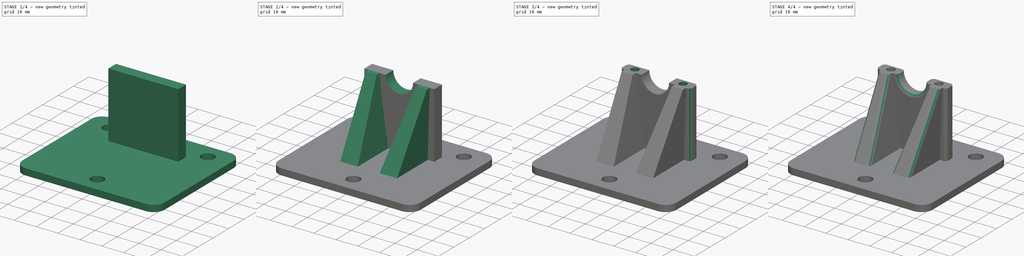
[diagram: build sequence overview — one tinted view per stage of 4, left to right]
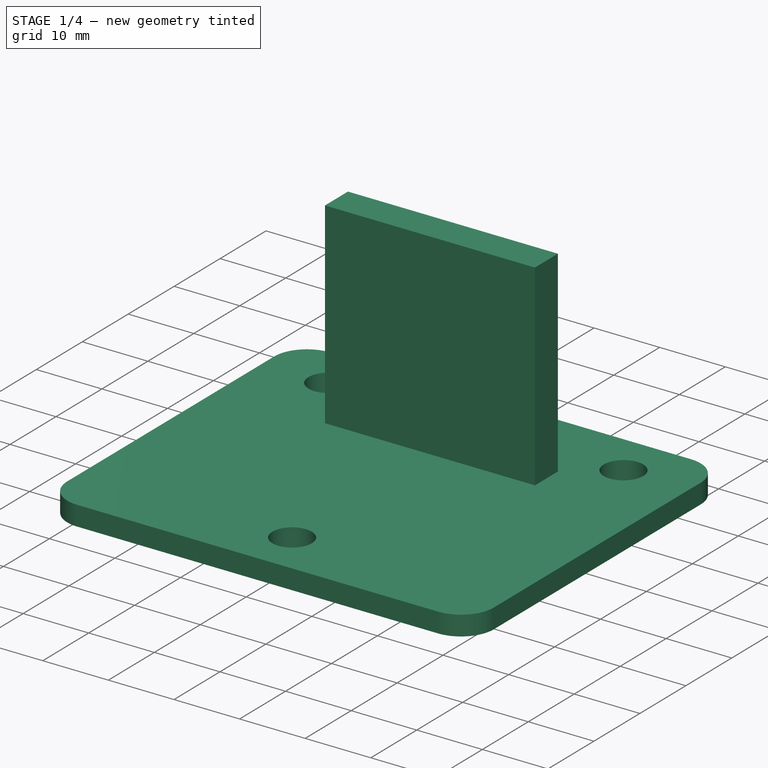
[diagram: stage 1 of 4 — iso view after this stage's code; geometry added in this stage tinted green]
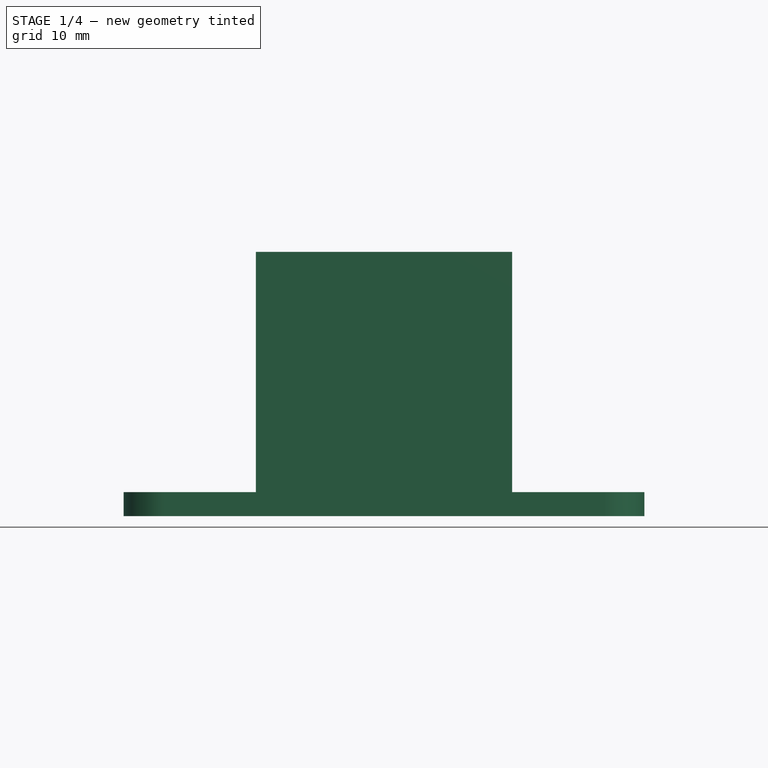
[diagram: stage 1 of 4 — front view after this stage's code; geometry added in this stage tinted green]
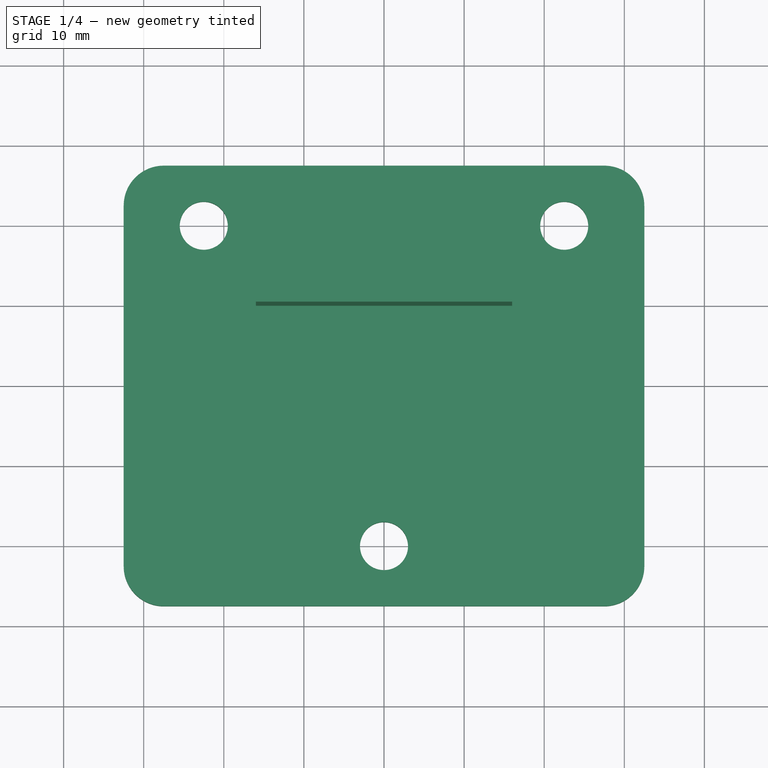
[diagram: stage 1 of 4 — top view after this stage's code; geometry added in this stage tinted green]
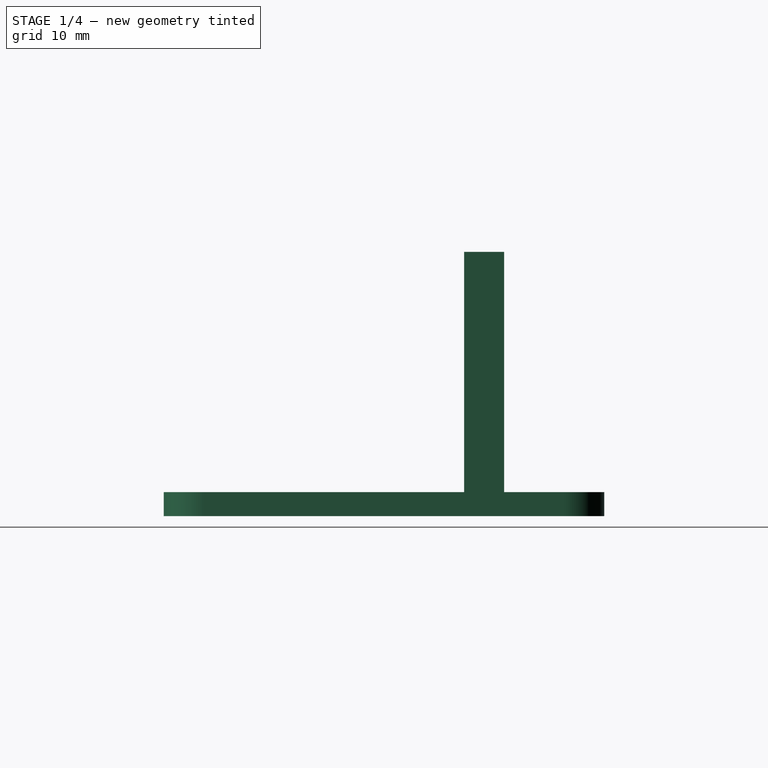
[diagram: stage 1 of 4 — right view after this stage's code; geometry added in this stage tinted green]
FCSTD DOCUMENT  (FreeCAD 0.18.4R)
Label: carro-impressov1
License: All rights reserved
LicenseURL: http://en.wikipedia.org/wiki/All_rights_reserved
objects: Sketcher::SketchObject×9, PartDesign::Pocket×3, PartDesign::Fillet×3, PartDesign::Pad×2, PartDesign::AdditiveLoft×2, PartDesign::Body×1
note: 27 computed .brp shape members not serialized (recipe doc carries the construction recipe); baked Part::Feature solids carry a one-line shape summary decoded from their .brp

FEATURE [Sketcher::SketchObject] Sketch
  MapMode = 5
  Support = -> [XY_Plane]
  sketch-geometry (12):
    g0: LineSegment StartX=-27.5 StartY=-27.5 StartZ=0 EndX=27.5 EndY=-27.5 EndZ=0
    g1: LineSegment StartX=32.5 StartY=-22.5 StartZ=0 EndX=32.5 EndY=22.5 EndZ=0
    g2: LineSegment StartX=27.5 StartY=27.5 StartZ=0 EndX=-27.5 EndY=27.5 EndZ=0
    g3: LineSegment StartX=-32.5 StartY=22.5 StartZ=0 EndX=-32.5 EndY=-22.5 EndZ=0
    g4: ArcOfCircle CenterX=27.5 CenterY=22.5 CenterZ=0 NormalX=0 NormalY=0 NormalZ=1 AngleXU=0 Radius=5 StartAngle=0 EndAngle=1.5708
    g5: ArcOfCircle CenterX=-27.5 CenterY=22.5 CenterZ=0 NormalX=0 NormalY=0 NormalZ=1 AngleXU=0 Radius=5 StartAngle=1.5708 EndAngle=3.14159
    g6: ArcOfCircle CenterX=-27.5 CenterY=-22.5 CenterZ=0 NormalX=0 NormalY=0 NormalZ=1 AngleXU=0 Radius=5 StartAngle=3.14159 EndAngle=4.71239
    g7: ArcOfCircle CenterX=27.5 CenterY=-22.5 CenterZ=0 NormalX=0 NormalY=0 NormalZ=1 AngleXU=0 Radius=5 StartAngle=4.71239 EndAngle=6.28319
    g8: Circle CenterX=-22.5 CenterY=20 CenterZ=0 NormalX=0 NormalY=0 NormalZ=1 AngleXU=0 Radius=3
    g9: Circle CenterX=22.5 CenterY=20 CenterZ=0 NormalX=0 NormalY=0 NormalZ=1 AngleXU=0 Radius=3
    g10: Circle CenterX=0 CenterY=-20 CenterZ=0 NormalX=0 NormalY=0 NormalZ=1 AngleXU=0 Radius=3
    g11: LineSegment [constr] StartX=-32.5 StartY=20 StartZ=0 EndX=32.5 EndY=20 EndZ=0
  constraints (32):
    c: Horizontal(g0)
    c: Horizontal(g2)
    c: Vertical(g1)
    c: Vertical(g3)
    c: Tangent(g2,g4) = -1.5708
    c: Tangent(g1,g4) = -1.5708
    c: Tangent(g2,g5) = -1.5708
    c: Tangent(g3,g5) = -1.5708
    c: Tangent(g3,g6) = -1.5708
    c: Tangent(g0,g6) = -1.5708
    c: Tangent(g1,g7) = -1.5708
    c: Tangent(g0,g7) = -1.5708
    c: Equal(g5,g6)
    c: Equal(g6,g7)
    c: Equal(g7,g4)
    c: Symmetric(g7,g5,g-1)
    c: DistanceX(g3,g1) = 65
    c: DistanceY(g0,g2) = 55
    c: Diameter(g5) = 10
    c: PointOnObject(g10,g-2)
    c: Diameter(g10) = 6
    c: Diameter(g8) = 6
    c: Diameter(g9) = 6
    c: DistanceY(g10,g-1) = 20
    c: DistanceX(g8,g9) = 45
    c: DistanceX(g8,g-1) = 22.5
    c: Horizontal(g11)
    c: PointOnObject(g11,g3)
    c: PointOnObject(g11,g1)
    c: PointOnObject(g9,g11)
    c: PointOnObject(g8,g11)
    c: DistanceY(g10,g8) = 40
FEATURE [PartDesign::Pad] Pad
  Length = 3
  Length2 = 100
  Profile = -> Sketch
  Type = 0
FEATURE [Sketcher::SketchObject] Sketch001
  ExternalGeometry = -> [Pad]
  MapMode = 5
  Placement = pos=(0,0,3) rot=(0,0,1;0rad)
  Support = -> [Pad]
  sketch-geometry (4):
    g0: LineSegment StartX=-16 StartY=15 StartZ=0 EndX=16 EndY=15 EndZ=0
    g1: LineSegment StartX=16 StartY=15 StartZ=0 EndX=16 EndY=10 EndZ=0
    g2: LineSegment StartX=16 StartY=10 StartZ=0 EndX=-16 EndY=10 EndZ=0
    g3: LineSegment StartX=-16 StartY=10 StartZ=0 EndX=-16 EndY=15 EndZ=0
  constraints (12):
    c: Coincident(g0,g1)
    c: Coincident(g1,g2)
    c: Coincident(g2,g3)
    c: Coincident(g3,g0)
    c: Horizontal(g0)
    c: Horizontal(g2)
    c: Vertical(g1)
    c: Vertical(g3)
    c: DistanceX(g0,g0) = 32
    c: DistanceY(g1,g1) = 5
    c: DistanceX(g-1,g1) = 16
    c: DistanceY(g2,g-12) = 10
FEATURE [PartDesign::Pad] Pad001
  BaseFeature = -> Pad
  Length = 30
  Length2 = 100
  Profile = -> Sketch001
  Type = 0
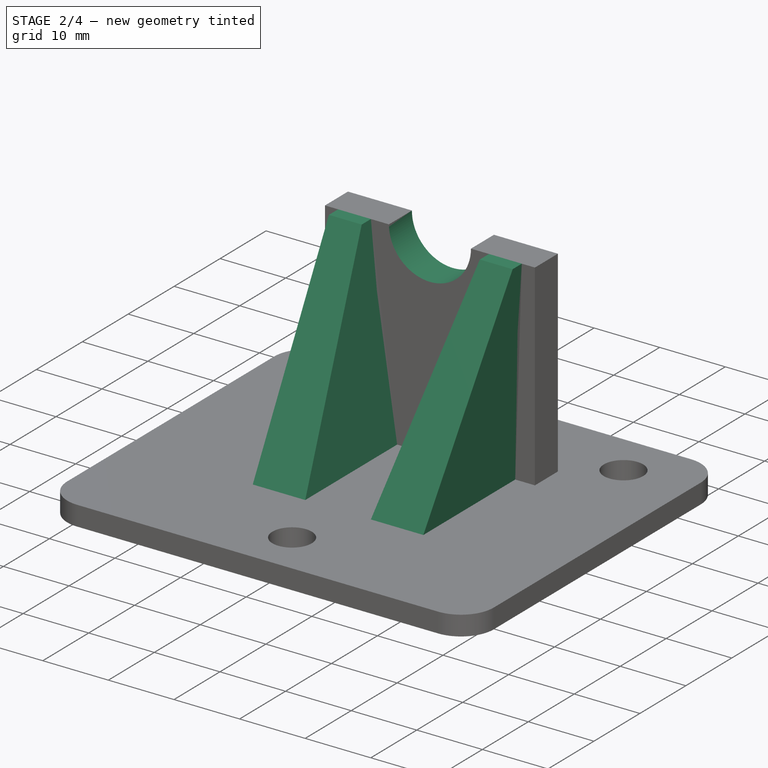
[diagram: stage 2 of 4 — iso view after this stage's code; geometry added in this stage tinted green]
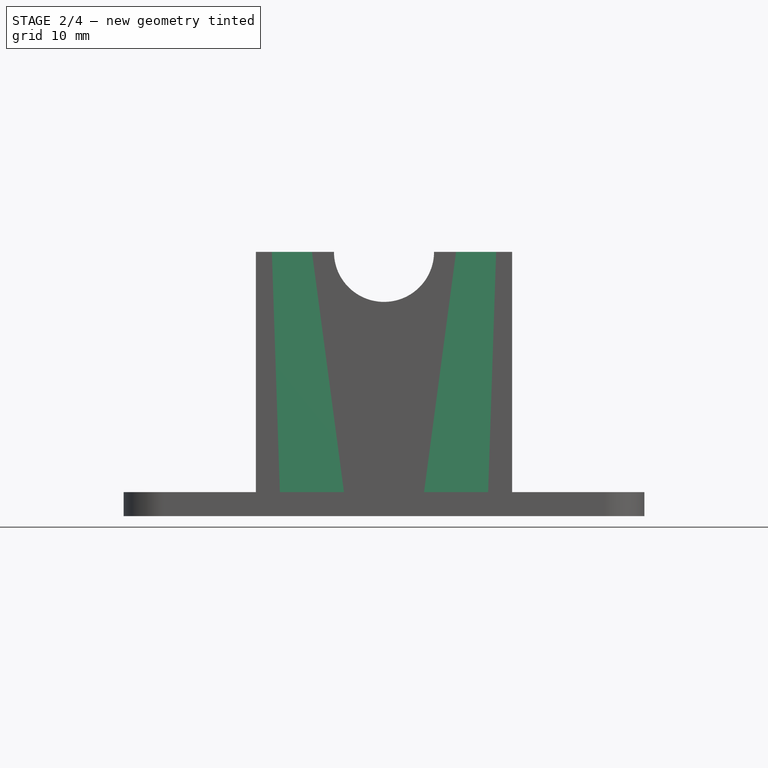
[diagram: stage 2 of 4 — front view after this stage's code; geometry added in this stage tinted green]
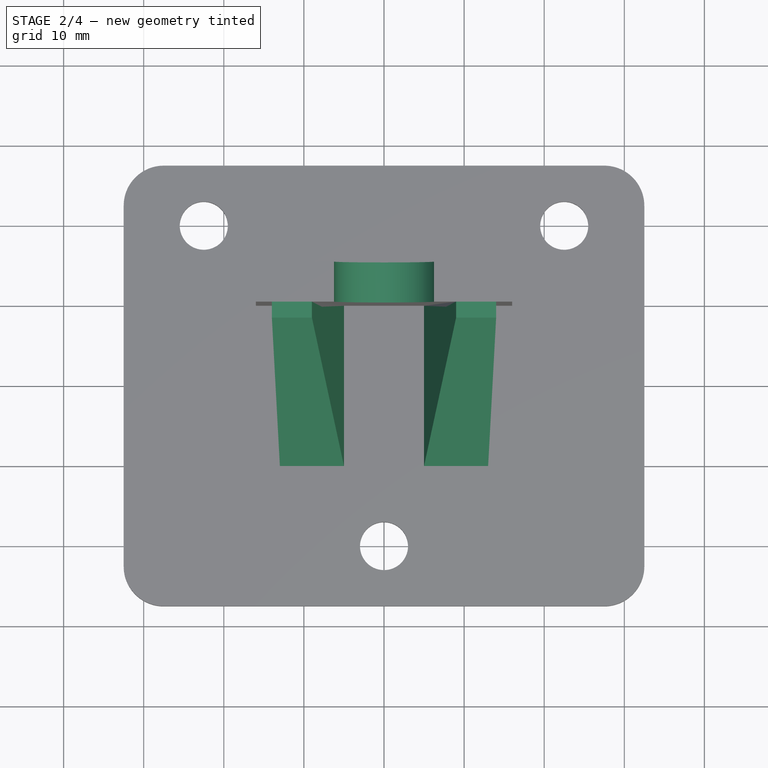
[diagram: stage 2 of 4 — top view after this stage's code; geometry added in this stage tinted green]
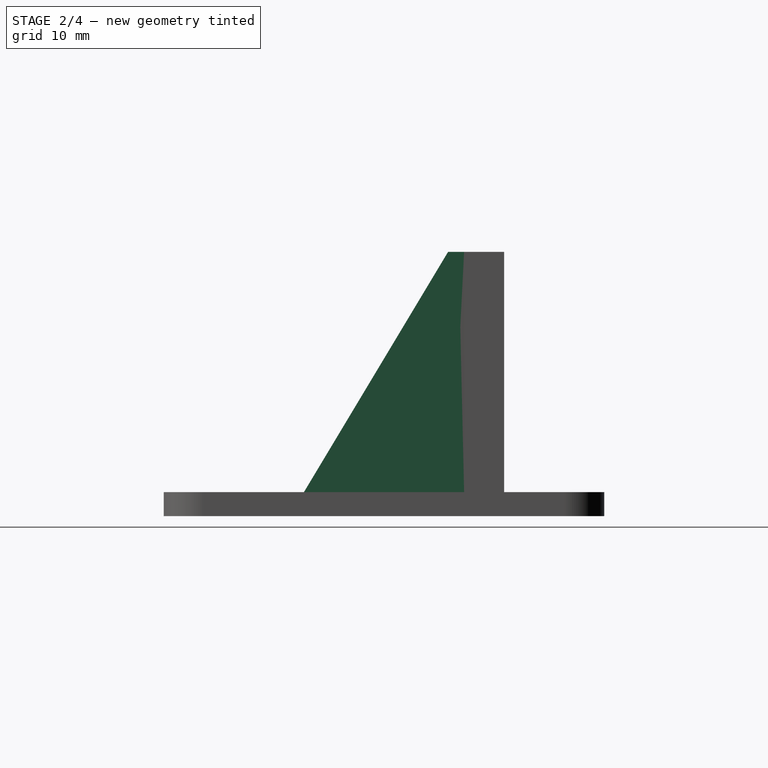
[diagram: stage 2 of 4 — right view after this stage's code; geometry added in this stage tinted green]
FEATURE [Sketcher::SketchObject] Sketch002
  ExternalGeometry = -> [Pad001]
  MapMode = 5
  Placement = pos=(0,10,0) rot=(1,0,0;1.5708rad)
  Support = -> [Pad001]
  sketch-geometry (1):
    g0: Circle CenterX=0 CenterY=33 CenterZ=0 NormalX=0 NormalY=0 NormalZ=1 AngleXU=0 Radius=6.25
  constraints (3):
    c: PointOnObject(g0,g-2)
    c: PointOnObject(g0,g-3)
    c: Diameter(g0) = 12.5
FEATURE [PartDesign::Pocket] Pocket
  BaseFeature = -> Pad001
  Length = 5
  Length2 = 100
  Profile = -> Sketch002
  Type = 0
FEATURE [Sketcher::SketchObject] Sketch003
  ExternalGeometry = -> [Pocket]
  MapMode = 5
  Placement = pos=(0,0,33) rot=(0,0,1;0rad)
  Support = -> [Pocket]
  sketch-geometry (4):
    g0: LineSegment StartX=-14 StartY=10 StartZ=0 EndX=-9 EndY=10 EndZ=0
    g1: LineSegment StartX=-9 StartY=10 StartZ=0 EndX=-9 EndY=8 EndZ=0
    g2: LineSegment StartX=-9 StartY=8 StartZ=0 EndX=-14 EndY=8 EndZ=0
    g3: LineSegment StartX=-14 StartY=8 StartZ=0 EndX=-14 EndY=10 EndZ=0
  constraints (12):
    c: Coincident(g0,g1)
    c: Coincident(g1,g2)
    c: Coincident(g2,g3)
    c: Coincident(g3,g0)
    c: Horizontal(g0)
    c: Horizontal(g2)
    c: Vertical(g1)
    c: Vertical(g3)
    c: PointOnObject(g0,g-3)
    c: DistanceX(g0,g0) = 5
    c: DistanceX(g-3,g0) = 2
    c: DistanceY(g1,g1) = 2
FEATURE [Sketcher::SketchObject] Sketch004
  ExternalGeometry = -> [Pocket]
  MapMode = 5
  Placement = pos=(0,0,3) rot=(0,0,1;0rad)
  Support = -> [Pocket]
  sketch-geometry (4):
    g0: LineSegment StartX=-13 StartY=10 StartZ=0 EndX=-5 EndY=10 EndZ=0
    g1: LineSegment StartX=-5 StartY=10 StartZ=0 EndX=-5 EndY=-10 EndZ=0
    g2: LineSegment StartX=-5 StartY=-10 StartZ=0 EndX=-13 EndY=-10 EndZ=0
    g3: LineSegment StartX=-13 StartY=-10 StartZ=0 EndX=-13 EndY=10 EndZ=0
  constraints (12):
    c: Coincident(g0,g1)
    c: Coincident(g1,g2)
    c: Coincident(g2,g3)
    c: Coincident(g3,g0)
    c: Horizontal(g0)
    c: Horizontal(g2)
    c: Vertical(g1)
    c: Vertical(g3)
    c: PointOnObject(g0,g-3)
    c: DistanceX(g-3,g0) = 3
    c: DistanceX(g2,g2) = 8
    c: DistanceY(g3,g3) = 20
FEATURE [PartDesign::AdditiveLoft] AdditiveLoft
  BaseFeature = -> Pocket
  Closed = false
  Profile = -> Sketch004
  Ruled = false
  Sections = -> [Sketch003]
FEATURE [Sketcher::SketchObject] Sketch005
  ExternalGeometry = -> [AdditiveLoft]
  MapMode = 5
  Placement = pos=(0,0,3) rot=(0,0,1;0rad)
  Support = -> [AdditiveLoft]
  sketch-geometry (4):
    g0: LineSegment StartX=13 StartY=10 StartZ=0 EndX=5 EndY=10 EndZ=0
    g1: LineSegment StartX=5 StartY=10 StartZ=0 EndX=5 EndY=-10 EndZ=0
    g2: LineSegment StartX=5 StartY=-10 StartZ=0 EndX=13 EndY=-10 EndZ=0
    g3: LineSegment StartX=13 StartY=-10 StartZ=0 EndX=13 EndY=10 EndZ=0
  constraints (12):
    c: Coincident(g0,g1)
    c: Coincident(g1,g2)
    c: Coincident(g2,g3)
    c: Coincident(g3,g0)
    c: Horizontal(g0)
    c: Horizontal(g2)
    c: Vertical(g1)
    c: Vertical(g3)
    c: PointOnObject(g0,g-3)
    c: DistanceX(g0,g0) = 8
    c: DistanceY(g1,g1) = 20
    c: DistanceX(g0,g-3) = 3
FEATURE [Sketcher::SketchObject] Sketch006
  ExternalGeometry = -> [AdditiveLoft]
  MapMode = 5
  Placement = pos=(0,0,33) rot=(0,0,1;0rad)
  Support = -> [AdditiveLoft]
  sketch-geometry (4):
    g0: LineSegment StartX=14 StartY=10 StartZ=0 EndX=9 EndY=10 EndZ=0
    g1: LineSegment StartX=9 StartY=10 StartZ=0 EndX=9 EndY=8 EndZ=0
    g2: LineSegment StartX=9 StartY=8 StartZ=0 EndX=14 EndY=8 EndZ=0
    g3: LineSegment StartX=14 StartY=8 StartZ=0 EndX=14 EndY=10 EndZ=0
  constraints (12):
    c: Coincident(g0,g1)
    c: Coincident(g1,g2)
    c: Coincident(g2,g3)
    c: Coincident(g3,g0)
    c: Horizontal(g0)
    c: Horizontal(g2)
    c: Vertical(g1)
    c: Vertical(g3)
    c: PointOnObject(g0,g-3)
    c: DistanceX(g0,g-3) = 2
    c: DistanceX(g2,g2) = 5
    c: DistanceY(g1,g1) = 2
FEATURE [PartDesign::AdditiveLoft] AdditiveLoft001
  BaseFeature = -> AdditiveLoft
  Closed = false
  Profile = -> Sketch005
  Ruled = false
  Sections = -> [Sketch006]
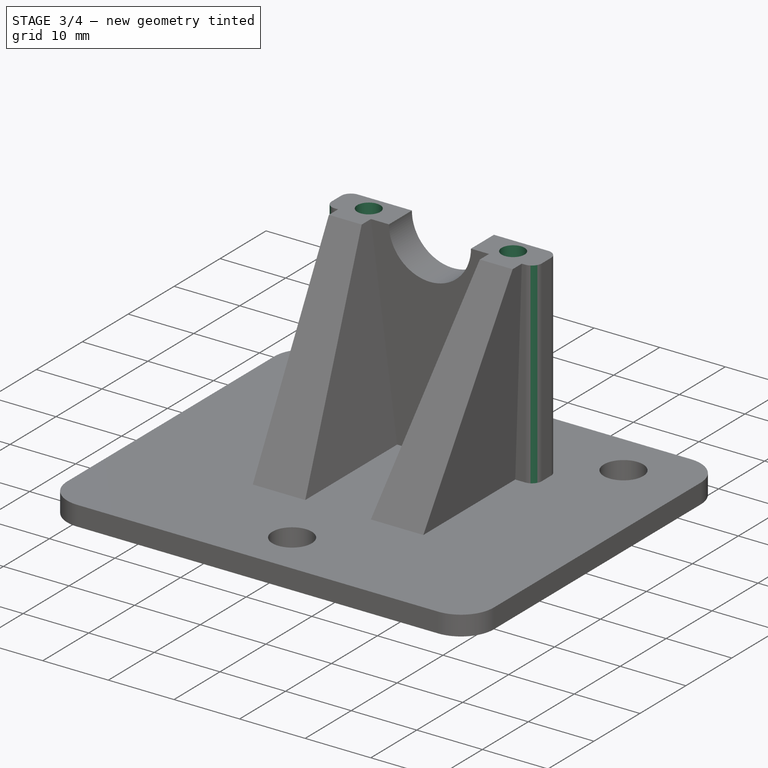
[diagram: stage 3 of 4 — iso view after this stage's code; geometry added in this stage tinted green]
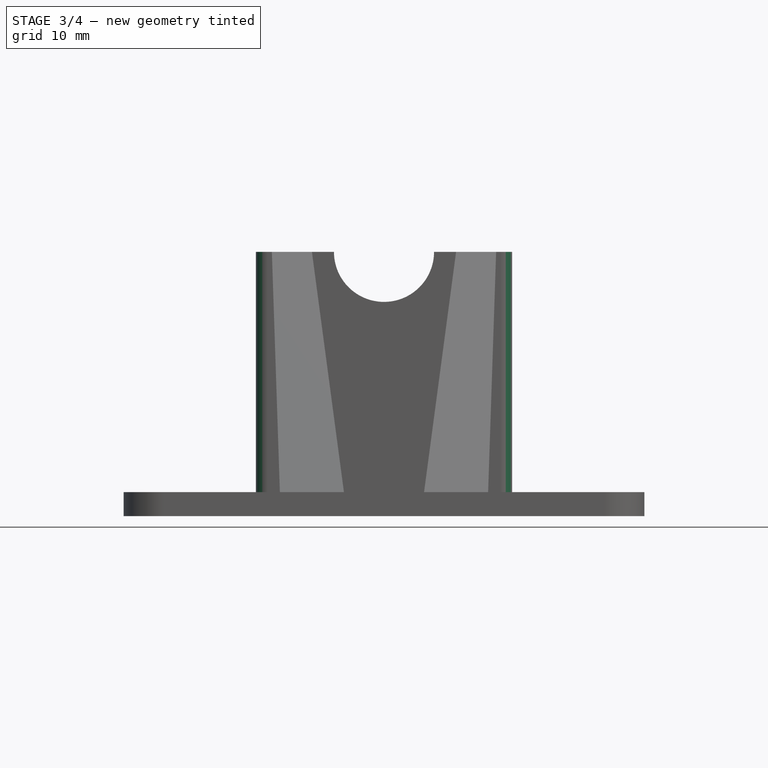
[diagram: stage 3 of 4 — front view after this stage's code; geometry added in this stage tinted green]
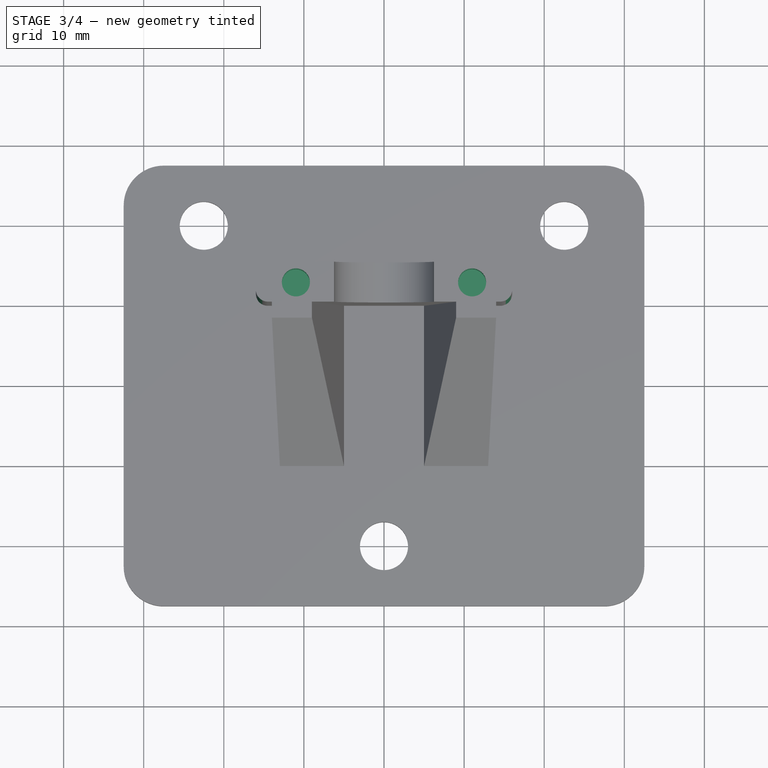
[diagram: stage 3 of 4 — top view after this stage's code; geometry added in this stage tinted green]
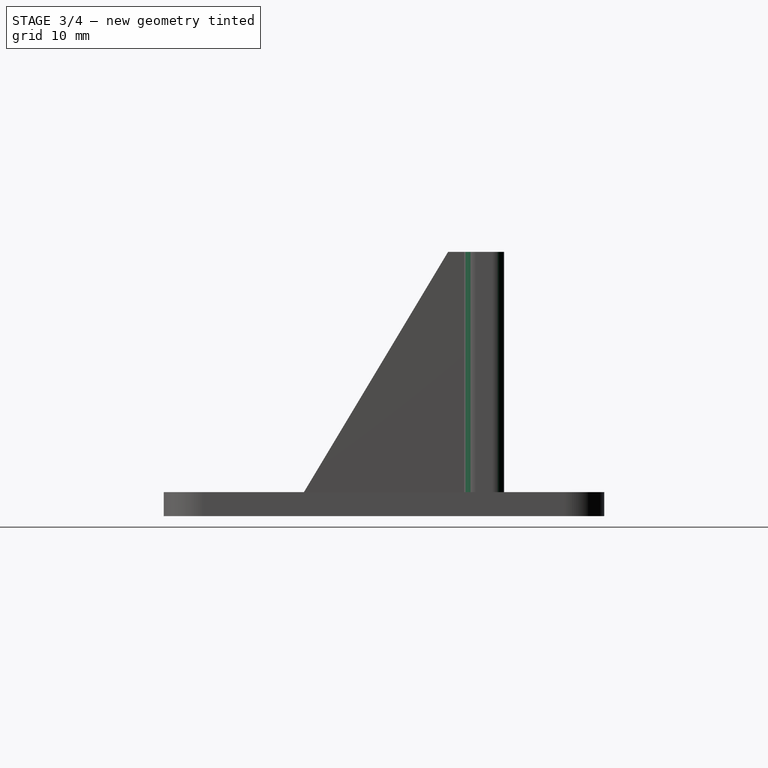
[diagram: stage 3 of 4 — right view after this stage's code; geometry added in this stage tinted green]
FEATURE [Sketcher::SketchObject] Sketch007
  AttachmentOffset = pos=(0,0,-2) rot=(0,0,1;0rad)
  ExternalGeometry = -> [AdditiveLoft001]
  MapMode = 5
  Placement = pos=(0,0,31) rot=(0,0,1;0rad)
  Support = -> [AdditiveLoft001]
  sketch-geometry (8):
    g0: ArcOfCircle CenterX=-11 CenterY=12.5 CenterZ=0 NormalX=0 NormalY=0 NormalZ=1 AngleXU=0 Radius=2.75 StartAngle=3.14159 EndAngle=6.28319
    g1: ArcOfCircle CenterX=11 CenterY=12.5 CenterZ=0 NormalX=0 NormalY=0 NormalZ=1 AngleXU=0 Radius=2.75 StartAngle=3.14159 EndAngle=6.28319
    g2: LineSegment StartX=-13.75 StartY=12.5 StartZ=0 EndX=-13.75 EndY=21.5 EndZ=0
    g3: LineSegment StartX=-8.25 StartY=12.5 StartZ=0 EndX=-8.25 EndY=21.5 EndZ=0
    g4: LineSegment StartX=8.25 StartY=12.5 StartZ=0 EndX=8.25 EndY=21.5 EndZ=0
    g5: LineSegment StartX=13.75 StartY=12.5 StartZ=0 EndX=13.75 EndY=21.5 EndZ=0
    g6: LineSegment StartX=13.75 StartY=21.5 StartZ=0 EndX=8.25 EndY=21.5 EndZ=0
    g7: LineSegment StartX=-8.25 StartY=21.5 StartZ=0 EndX=-13.75 EndY=21.5 EndZ=0
  constraints (22):
    c: Diameter(g0) = 5.5
    c: Diameter(g1) = 5.5
    c: DistanceX(g-4,g0) = 5
    c: DistanceX(g1,g-6) = 5
    c: DistanceY(g0,g-4) = 2.5
    c: DistanceY(g1,g-6) = 2.5
    c: Vertical(g2)
    c: Vertical(g3)
    c: Vertical(g4)
    c: Vertical(g5)
    c: Coincident(g6,g5)
    c: Coincident(g6,g4)
    c: Horizontal(g6)
    c: Coincident(g7,g3)
    c: Coincident(g7,g2)
    c: Horizontal(g7)
    c: DistanceX(g7,g7) = 5.5
    c: DistanceX(g6,g6) = 5.5
    c: Coincident(g0,g2)
    c: Coincident(g0,g3)
    c: Coincident(g1,g4)
    c: Coincident(g1,g5)
FEATURE [PartDesign::Pocket] Pocket001
  BaseFeature = -> AdditiveLoft001
  Length = 2
  Length2 = 100
  Profile = -> Sketch007
  Type = 0
FEATURE [Sketcher::SketchObject] Sketch008
  ExternalGeometry = -> [Pocket001]
  MapMode = 5
  Placement = pos=(0,0,33) rot=(0,0,1;0rad)
  Support = -> [Pocket001]
  sketch-geometry (2):
    g0: Circle CenterX=-11 CenterY=12.4 CenterZ=0 NormalX=0 NormalY=0 NormalZ=1 AngleXU=0 Radius=1.75
    g1: Circle CenterX=11 CenterY=12.4 CenterZ=0 NormalX=0 NormalY=0 NormalZ=1 AngleXU=0 Radius=1.75
  constraints (6):
    c: DistanceX(g-6,g0) = 5
    c: DistanceX(g1,g-4) = 5
    c: DistanceY(g0,g-5) = 2.6
    c: DistanceY(g1,g-4) = 2.6
    c: Diameter(g0) = 3.5
    c: Diameter(g1) = 3.5
FEATURE [PartDesign::Pocket] Pocket002
  BaseFeature = -> Pocket001
  Length = 7
  Length2 = 100
  Profile = -> Sketch008
  Type = 0
FEATURE [PartDesign::Fillet] Fillet
  Base = -> Pocket002 [Edge65,Edge64,Edge67,Edge79]
  BaseFeature = -> Pocket002
  Radius = 1.5
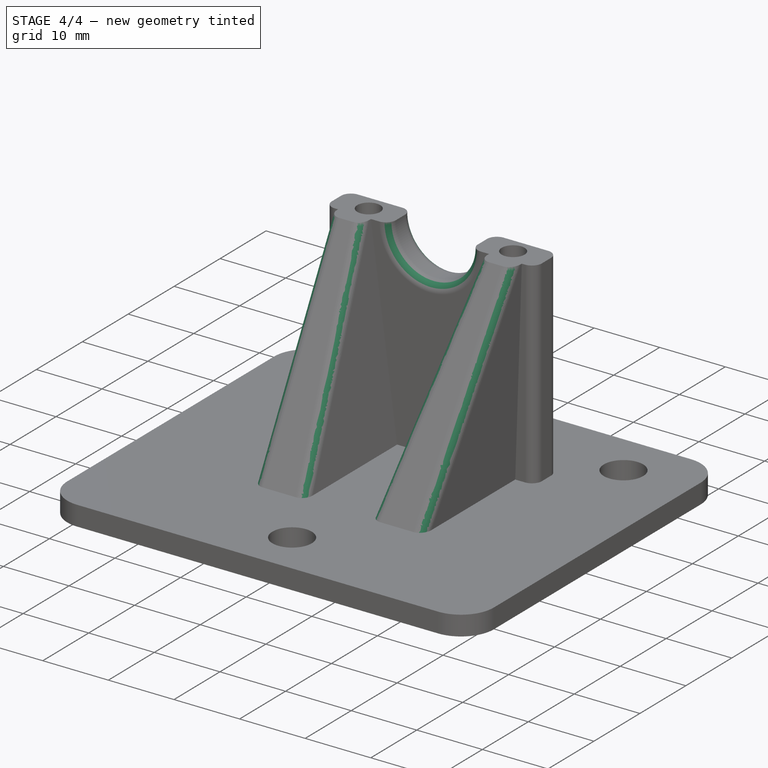
[diagram: stage 4 of 4 — iso view after this stage's code; geometry added in this stage tinted green]
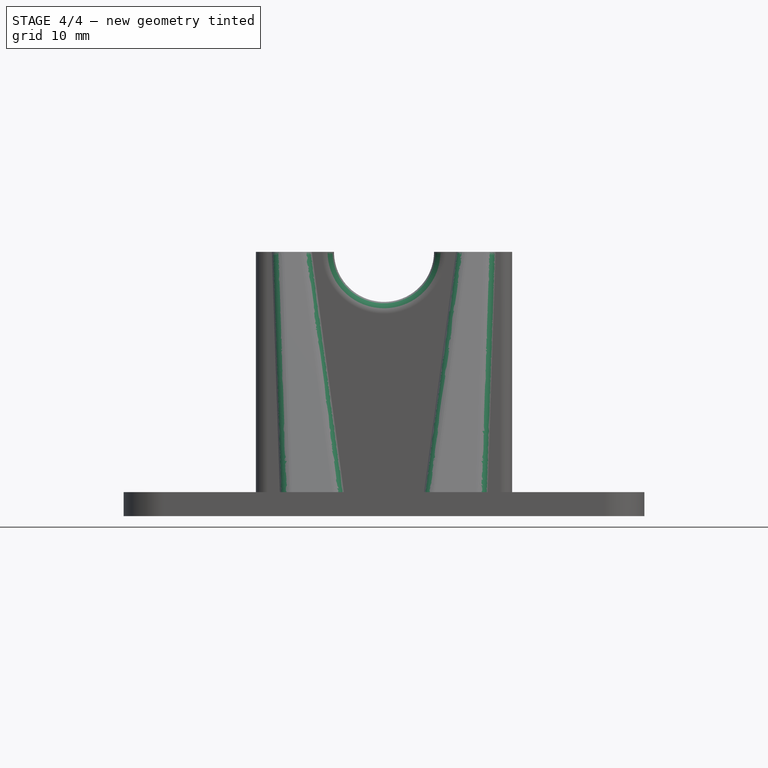
[diagram: stage 4 of 4 — front view after this stage's code; geometry added in this stage tinted green]
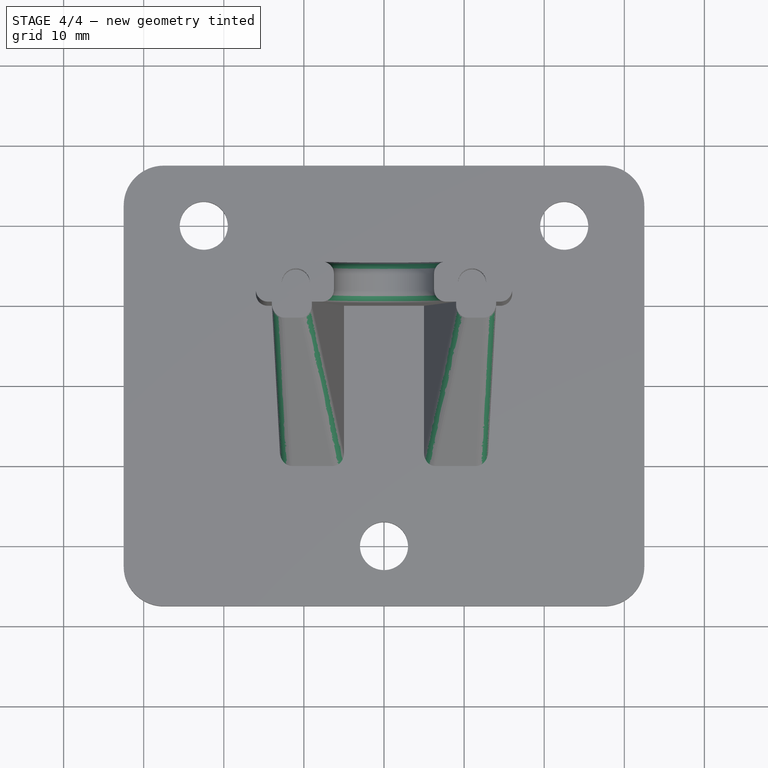
[diagram: stage 4 of 4 — top view after this stage's code; geometry added in this stage tinted green]
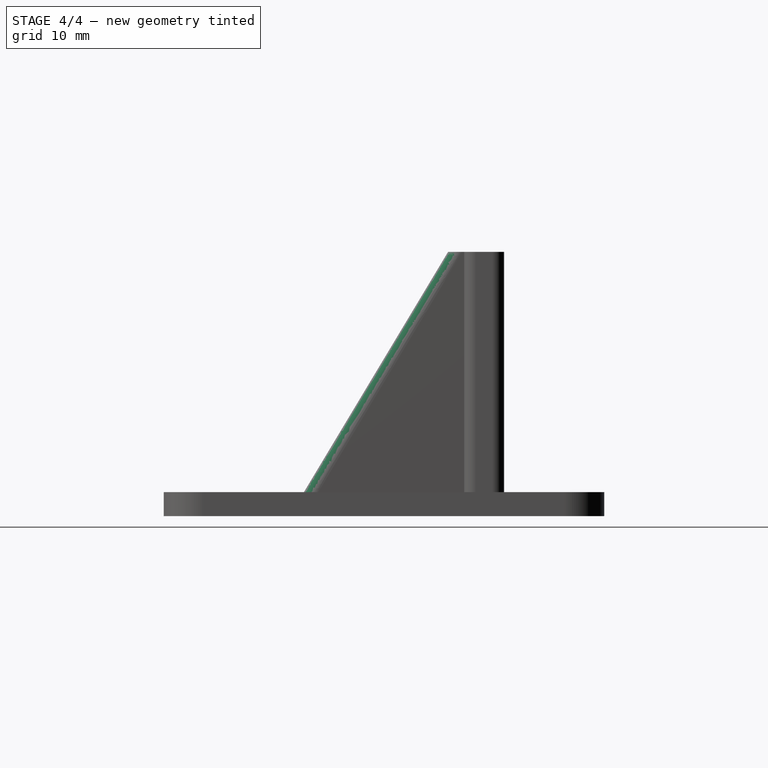
[diagram: stage 4 of 4 — right view after this stage's code; geometry added in this stage tinted green]
FEATURE [PartDesign::Fillet] Fillet001
  Base = -> Fillet [Edge38,Edge34,Edge65,Edge61]
  BaseFeature = -> Fillet
  Radius = 1.5
FEATURE [PartDesign::Fillet] Fillet002
  Base = -> Fillet001 [Edge53,Edge58]
  BaseFeature = -> Fillet001
  Radius = 1.5
FEATURE [PartDesign::Body] Body
  Group = -> [Sketch,Pad,Sketch001,Pad001,Sketch002,Pocket,Sketch003,Sketch004,AdditiveLoft,Sketch005,Sketch006,AdditiveLoft001,Sketch007,Pocket001,Sketch008,Pocket002,Fillet,Fillet001,Fillet002]
  Origin = -> Origin
  Tip = -> Fillet002
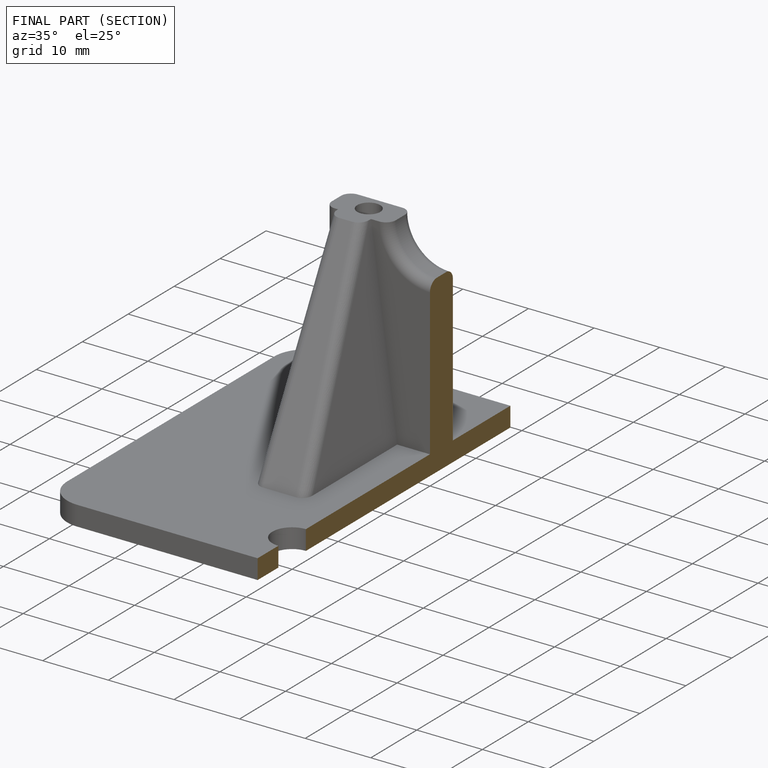
[diagram: finished part — half-section view (interior)]
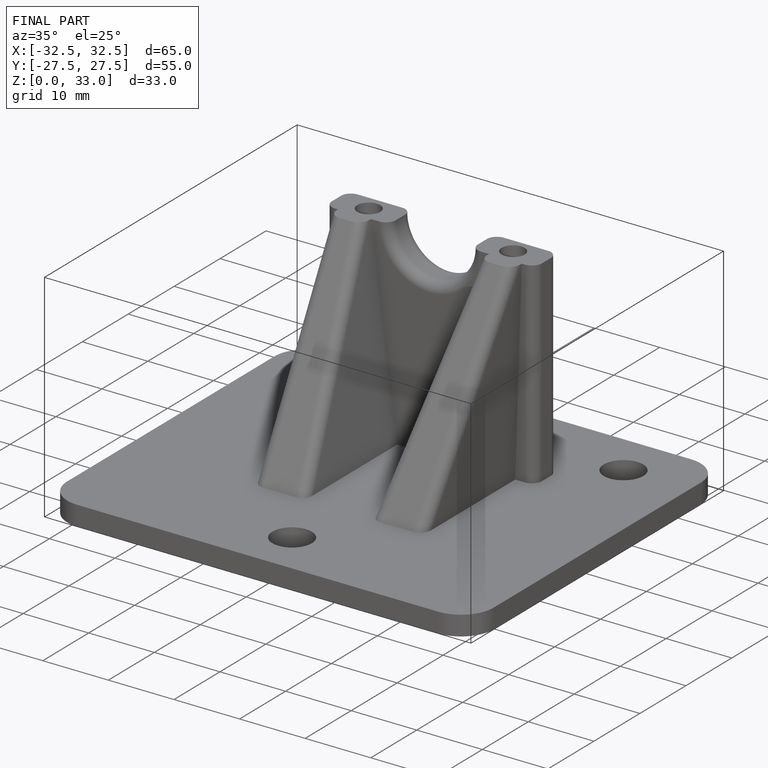
[diagram: finished part — iso view with bounding-box wireframe]
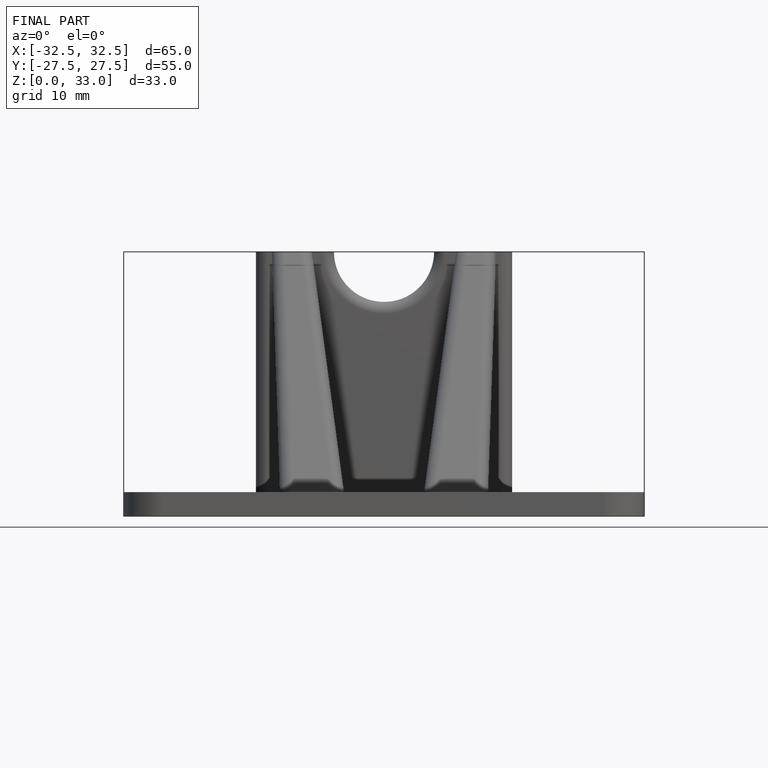
[diagram: finished part — front view with bounding-box wireframe]
